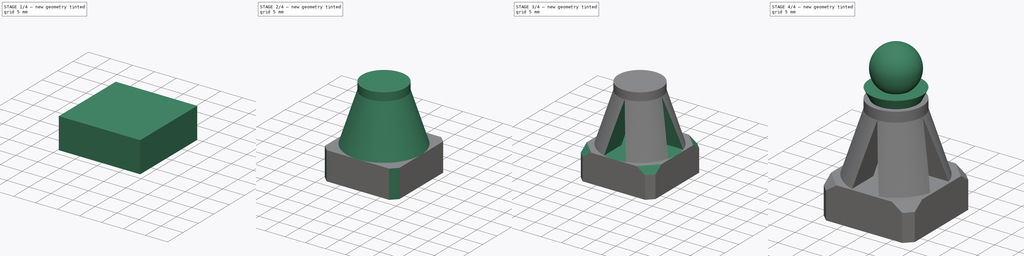
[diagram: build sequence overview — one tinted view per stage of 4, left to right]
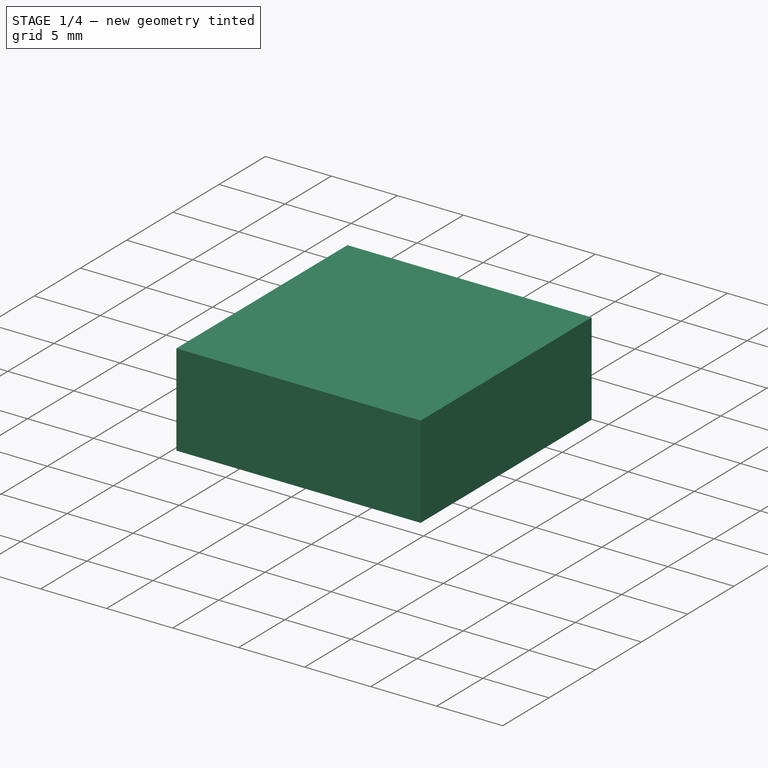
[diagram: stage 1 of 4 — iso view after this stage's code; geometry added in this stage tinted green]
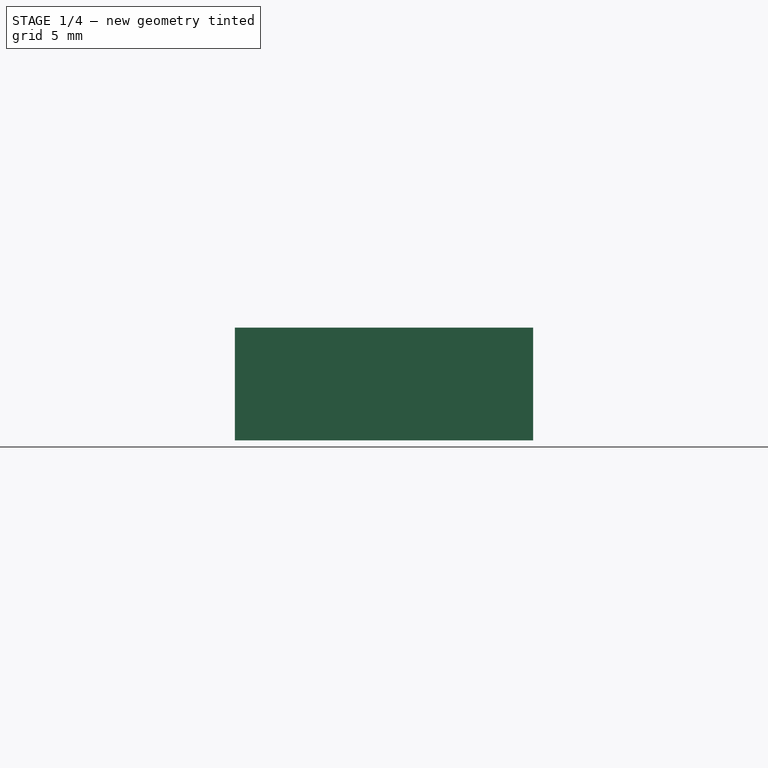
[diagram: stage 1 of 4 — front view after this stage's code; geometry added in this stage tinted green]
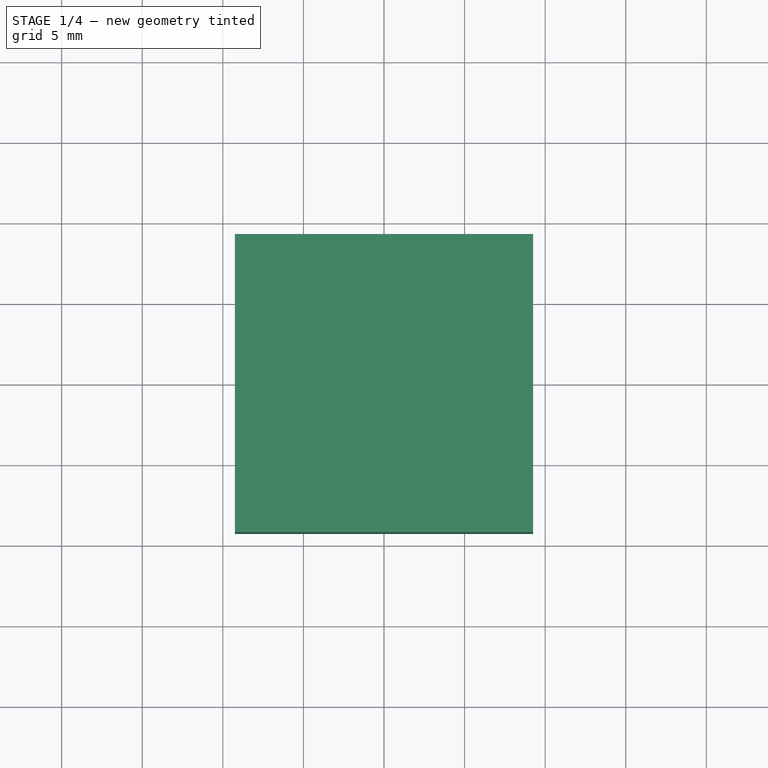
[diagram: stage 1 of 4 — top view after this stage's code; geometry added in this stage tinted green]
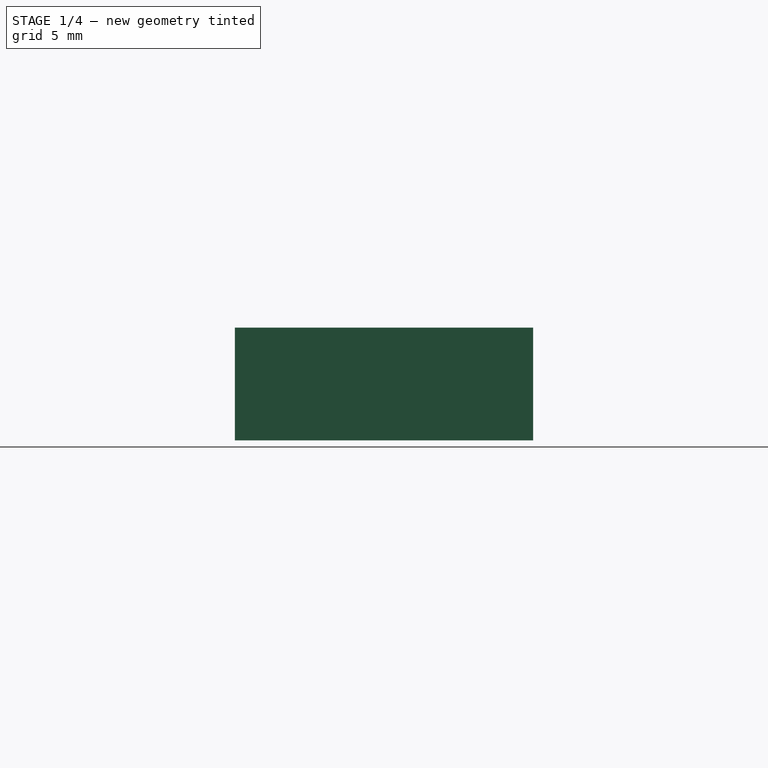
[diagram: stage 1 of 4 — right view after this stage's code; geometry added in this stage tinted green]
FCSTD DOCUMENT  (FreeCAD 0.21R33771 (Git))
Label: NewPawn
License: All rights reserved
LicenseURL: http://en.wikipedia.org/wiki/All_rights_reserved
objects: Sketcher::SketchObject×8, PartDesign::Pad×3, PartDesign::AdditiveLoft×2, PartDesign::Chamfer×2, Spreadsheet::Sheet×1, PartDesign::Pocket×1, PartDesign::PolarPattern×1, PartDesign::AdditiveEllipsoid×1, PartDesign::Body×1, App::Part×1
note: 28 computed .brp shape members not serialized (recipe doc carries the construction recipe); baked Part::Feature solids carry a one-line shape summary decoded from their .brp

FEATURE [Spreadsheet::Sheet] Spreadsheet  label="s"
  cells = A1='base_hole; B1(base_hole)=16; A2='base_clearance; B2(base_clearance)=0.3; A3='base_depth; B3(base_depth)=4; A4='base_spacer_depth; B4(base_spacer_depth)=3; A5='base_chamfer; B5(base_chamfer)=1.5; A6='base_total_depth; B6(base_total_depth)==B3 + base_spacer_depth * 2; A8='body_height; B8(body_height)=12; A10='base_wall; B10(base_wall)=2.5; A12='loft_top; B12(loft_top)=2; A14='platform_diameter; B14(platform_diameter)=10.8; A15='platform_offset; B15(platform_offset)=2.09; A16='platform_depth; B16(platform_depth)=2; A17='tower_space; B17(tower_space)==B14 / 2; C17='Calculated; A19='total_stock_height; B19(total_stock_height)==B3 + B4 + B8 + B16 * 2; C19='Calculated; A20='piece_total_height; B20(piece_total_height)=32; A21='crown_pocket; B21(crown_pocket)=5
FEATURE [Sketcher::SketchObject] Sketch
  FullyConstrained = true
  MapMode = 5
  expr: Constraints[10] = <<s>>.base_hole + <<s>>.base_wall
  expr: Constraints[11] = <<s>>.base_hole + <<s>>.base_wall
  expr: Constraints[1] = <<s>>.base_hole + <<s>>.base_clearance
  sketch-geometry (5):
    g0: Circle CenterX=0 CenterY=0 CenterZ=0 NormalX=0 NormalY=0 NormalZ=1 AngleXU=0 Radius=8.15
    g1: LineSegment StartX=-9.25 StartY=9.25 StartZ=0 EndX=9.25 EndY=9.25 EndZ=0
    g2: LineSegment StartX=9.25 StartY=9.25 StartZ=0 EndX=9.25 EndY=-9.25 EndZ=0
    g3: LineSegment StartX=9.25 StartY=-9.25 StartZ=0 EndX=-9.25 EndY=-9.25 EndZ=0
    g4: LineSegment StartX=-9.25 StartY=-9.25 StartZ=0 EndX=-9.25 EndY=9.25 EndZ=0
  constraints (13):
    c: Coincident(g0,g-1)
    c: Diameter(g0) = 16.3
    c: Coincident(g1,g2)
    c: Coincident(g2,g3)
    c: Coincident(g3,g4)
    c: Coincident(g4,g1)
    c: Horizontal(g1)
    c: Horizontal(g3)
    c: Vertical(g2)
    c: Vertical(g4)
    c: DistanceY(g4,g4) = 18.5
    c: DistanceX(g1,g1) = 18.5
    c: Symmetric(g1,g3,g0)
FEATURE [PartDesign::Pad] Pad  label="BasePad"
  Direction = (0,0,1)
  Length = 4
  Length2 = 10
  Profile = -> Sketch
  ReferenceAxis = -> Sketch [N_Axis]
  Type = 0
  expr: Length = <<s>>.base_depth
FEATURE [Sketcher::SketchObject] Sketch001
  FullyConstrained = true
  MapMode = 5
  Placement = pos=(0,0,4) rot=(0,0,1;0rad)
  Support = -> [Pad]
  expr: Constraints[8] = <<s>>.base_hole + <<s>>.base_wall
  expr: Constraints[9] = <<s>>.base_hole + <<s>>.base_wall
  sketch-geometry (4):
    g0: LineSegment StartX=-9.25 StartY=9.25 StartZ=0 EndX=9.25 EndY=9.25 EndZ=0
    g1: LineSegment StartX=9.25 StartY=9.25 StartZ=0 EndX=9.25 EndY=-9.25 EndZ=0
    g2: LineSegment StartX=9.25 StartY=-9.25 StartZ=0 EndX=-9.25 EndY=-9.25 EndZ=0
    g3: LineSegment StartX=-9.25 StartY=-9.25 StartZ=0 EndX=-9.25 EndY=9.25 EndZ=0
  constraints (11):
    c: Coincident(g0,g1)
    c: Coincident(g1,g2)
    c: Coincident(g2,g3)
    c: Coincident(g3,g0)
    c: Horizontal(g0)
    c: Horizontal(g2)
    c: Vertical(g1)
    c: Vertical(g3)
    c: DistanceY(g3,g3) = 18.5
    c: DistanceX(g0,g0) = 18.5
    c: Symmetric(g0,g2,g-1)
FEATURE [PartDesign::Pad] Pad001  label="BaseTopper"
  BaseFeature = -> Pad
  Direction = (0,0,1)
  Length = 3
  Length2 = 10
  Profile = -> Sketch001
  ReferenceAxis = -> Sketch001 [N_Axis]
  Type = 0
  expr: Length = <<s>>.base_spacer_depth
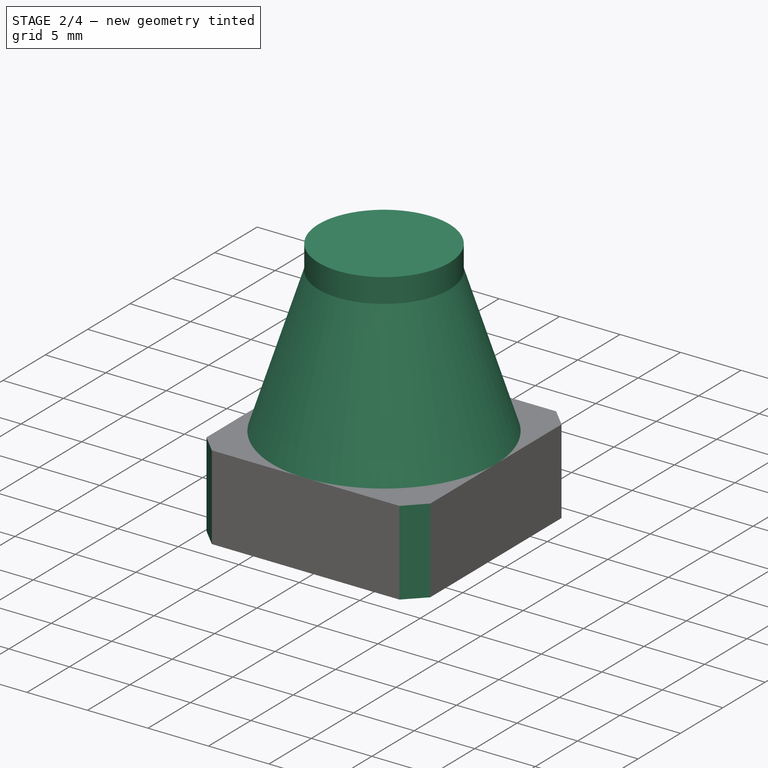
[diagram: stage 2 of 4 — iso view after this stage's code; geometry added in this stage tinted green]
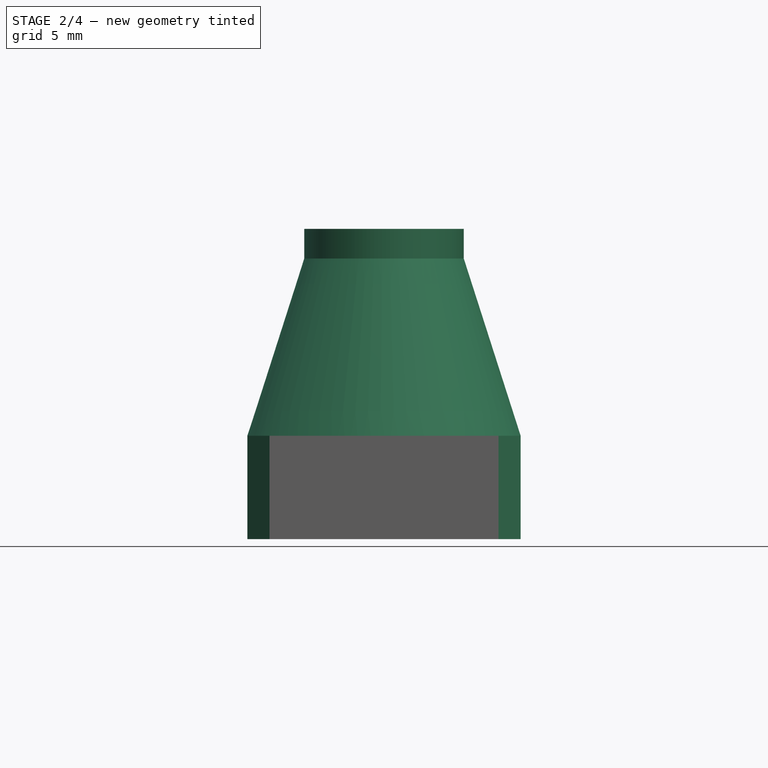
[diagram: stage 2 of 4 — front view after this stage's code; geometry added in this stage tinted green]
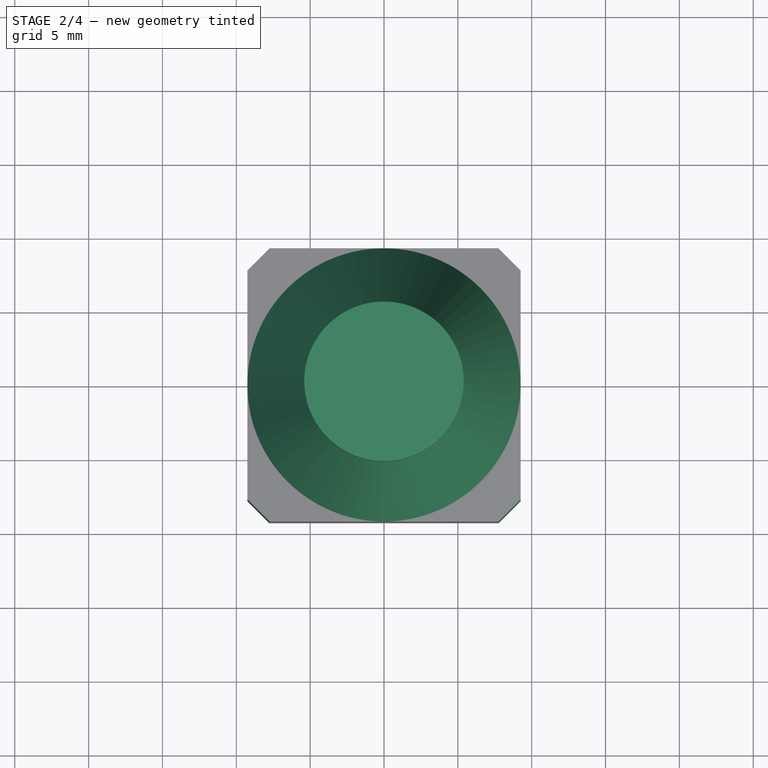
[diagram: stage 2 of 4 — top view after this stage's code; geometry added in this stage tinted green]
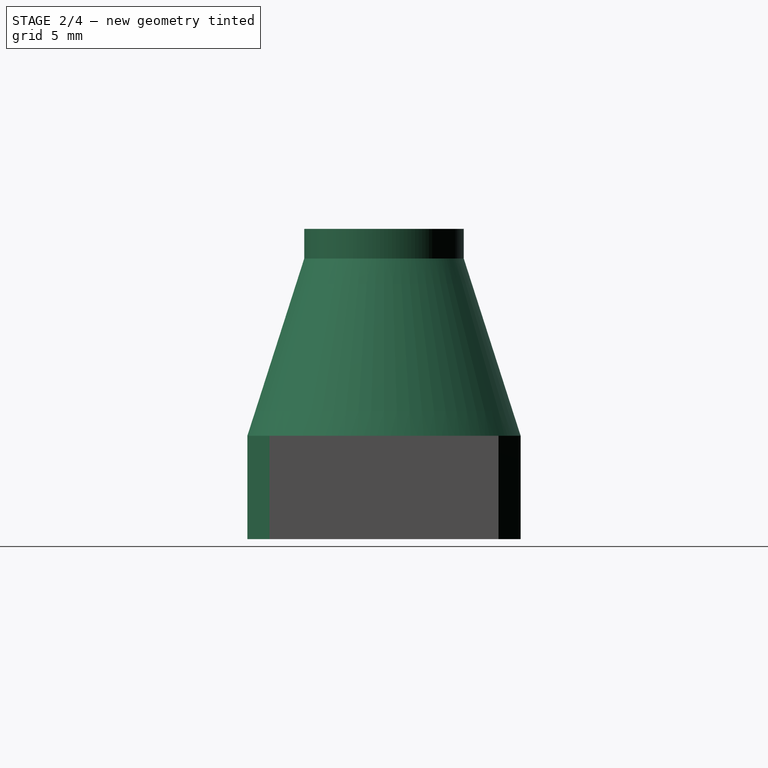
[diagram: stage 2 of 4 — right view after this stage's code; geometry added in this stage tinted green]
FEATURE [Sketcher::SketchObject] Sketch002
  FullyConstrained = true
  MapMode = 5
  Placement = pos=(0,0,7) rot=(0,0,1;0rad)
  Support = -> [Pad001]
  expr: Constraints[1] = <<s>>.base_hole + <<s>>.base_wall
  sketch-geometry (1):
    g0: Circle CenterX=0 CenterY=0 CenterZ=0 NormalX=0 NormalY=0 NormalZ=1 AngleXU=0 Radius=9.25
  constraints (2):
    c: Coincident(g0,g-1)
    c: Diameter(g0) = 18.5
FEATURE [Sketcher::SketchObject] Sketch003
  AttachmentOffset = pos=(0,0,12) rot=(0,0,1;0rad)
  FullyConstrained = true
  MapMode = 5
  Placement = pos=(0,0,19) rot=(0,0,1;0rad)
  Support = -> [Pad001]
  expr: .AttachmentOffset.Base.z = Spreadsheet.body_height
  expr: Constraints[1] = <<s>>.platform_diameter
  sketch-geometry (1):
    g0: Circle CenterX=0 CenterY=0 CenterZ=0 NormalX=0 NormalY=0 NormalZ=1 AngleXU=0 Radius=5.4
  constraints (2):
    c: Coincident(g0,g-1)
    c: Diameter(g0) = 10.8
FEATURE [PartDesign::AdditiveLoft] AdditiveLoft  label="TowerRise"
  BaseFeature = -> Pad001
  Closed = false
  Profile = -> Sketch002
  Ruled = false
  Sections = -> [Sketch003]
FEATURE [Sketcher::SketchObject] Sketch005
  FullyConstrained = true
  MapMode = 5
  Placement = pos=(0,0,19) rot=(0,0,1;0rad)
  Support = -> [AdditiveLoft]
  expr: Constraints[1] = <<s>>.platform_diameter
  sketch-geometry (1):
    g0: Circle CenterX=0 CenterY=0 CenterZ=0 NormalX=0 NormalY=0 NormalZ=1 AngleXU=0 Radius=5.4
  constraints (2):
    c: Coincident(g0,g-1)
    c: Diameter(g0) = 10.8
FEATURE [PartDesign::Pad] Pad002  label="PlatformPad"
  BaseFeature = -> AdditiveLoft
  Direction = (0,0,1)
  Length = 2
  Length2 = 10
  Profile = -> Sketch005
  ReferenceAxis = -> Sketch005 [N_Axis]
  Type = 0
  expr: Length = <<s>>.platform_depth
FEATURE [PartDesign::Chamfer] Chamfer  label="BaseEdgeChamfer"
  Angle = 45
  Base = -> Pad002 [Edge18,Edge5,Edge21,Edge8,Edge2,Edge14,Edge13,Edge1]
  BaseFeature = -> Pad002
  ChamferType = 0
  FlipDirection = false
  Size = 1.5
  Size2 = 1
  SupportTransform = false
  UseAllEdges = false
  expr: Size = <<s>>.base_chamfer
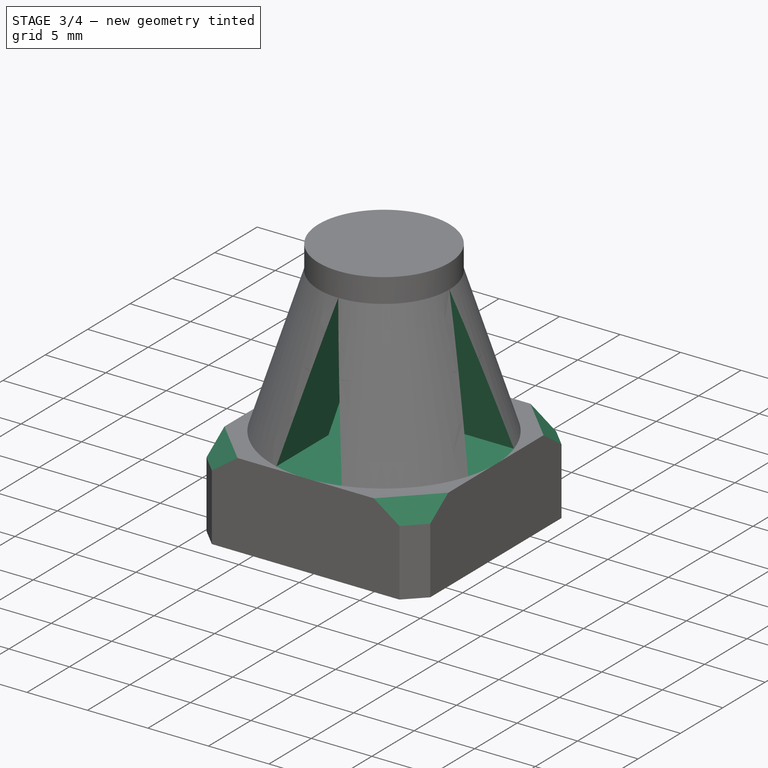
[diagram: stage 3 of 4 — iso view after this stage's code; geometry added in this stage tinted green]
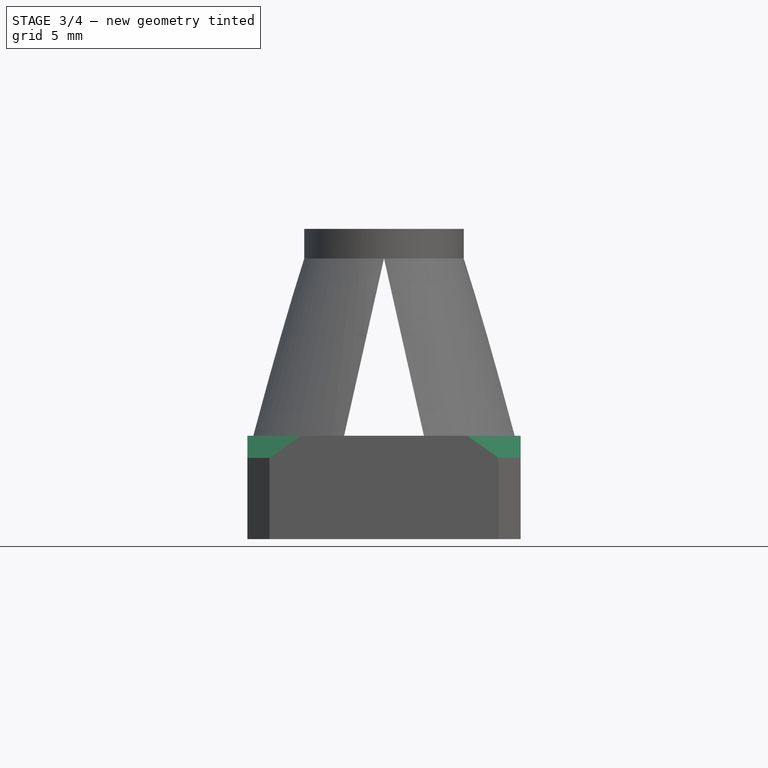
[diagram: stage 3 of 4 — front view after this stage's code; geometry added in this stage tinted green]
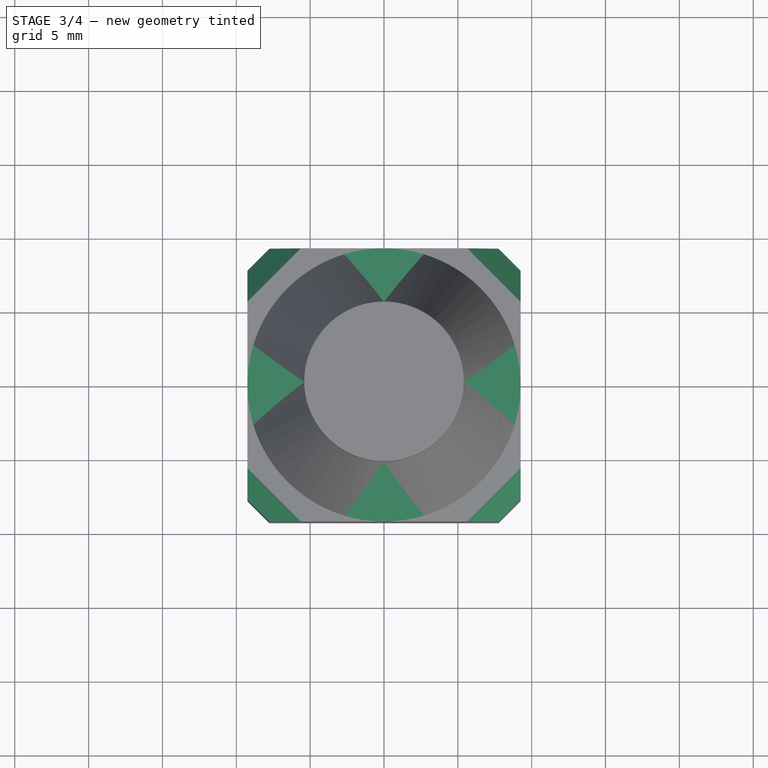
[diagram: stage 3 of 4 — top view after this stage's code; geometry added in this stage tinted green]
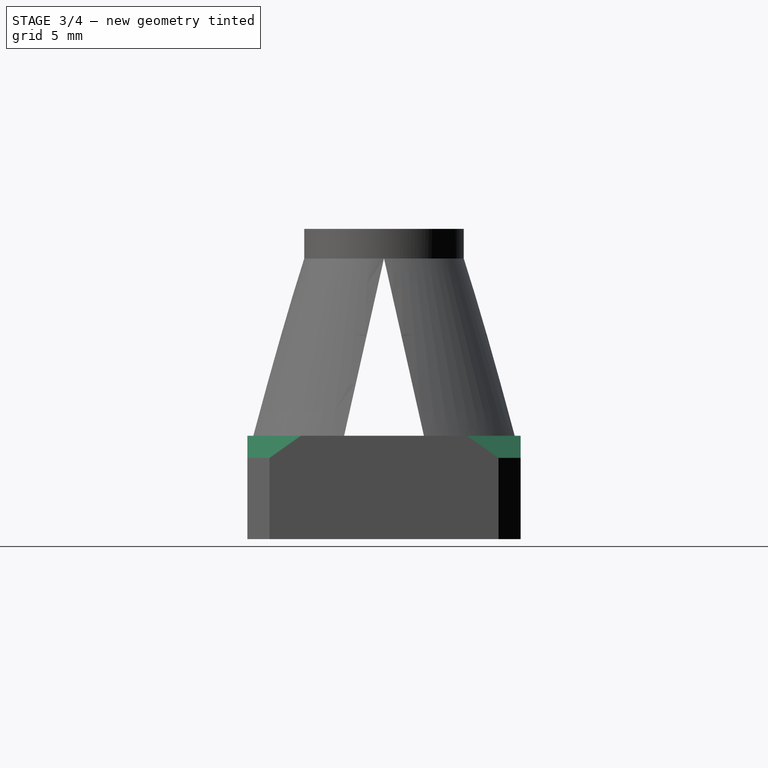
[diagram: stage 3 of 4 — right view after this stage's code; geometry added in this stage tinted green]
FEATURE [PartDesign::Chamfer] Chamfer001  label="BaseTopEdgeChamfer"
  Angle = 45
  Base = -> Chamfer [Edge47,Edge45,Edge33,Edge35]
  BaseFeature = -> Chamfer
  ChamferType = 0
  FlipDirection = false
  Size = 1.5
  Size2 = 1
  SupportTransform = false
  UseAllEdges = false
  expr: Size = <<s>>.base_chamfer
FEATURE [Sketcher::SketchObject] Sketch006
  FullyConstrained = true
  MapMode = 5
  Placement = pos=(9.25,0,0) rot=(0.57735,0.57735,0.57735;2.0944rad)
  Support = -> [Chamfer001]
  expr: Constraints[5] = <<s>>.tower_space
  expr: Constraints[6] = <<s>>.tower_space / 2
  expr: Constraints[7] = <<s>>.base_depth + <<s>>.base_spacer_depth
  expr: Constraints[8] = <<s>>.body_height
  sketch-geometry (3):
    g0: LineSegment StartX=0 StartY=19 StartZ=0 EndX=-2.7 EndY=7 EndZ=0
    g1: LineSegment StartX=-2.7 StartY=7 StartZ=0 EndX=2.7 EndY=7 EndZ=0
    g2: LineSegment StartX=2.7 StartY=7 StartZ=0 EndX=0 EndY=19 EndZ=0
  constraints (9):
    c: PointOnObject(g0,g-2)
    c: Coincident(g0,g1)
    c: Horizontal(g1)
    c: Coincident(g1,g2)
    c: Coincident(g2,g0)
    c: DistanceX(g1,g1) = 5.4
    c: DistanceX(g0,g-1) = 2.7
    c: DistanceY(g-1,g0) = 7
    c: DistanceY(g0,g0) = 12
FEATURE [PartDesign::Pocket] Pocket  label="SideTowerPocket"
  BaseFeature = -> Chamfer001
  Direction = (-1,0,0)
  Length = 5
  Length2 = 5
  Profile = -> Sketch006
  ReferenceAxis = -> Sketch006 [N_Axis]
  Type = 1
FEATURE [PartDesign::PolarPattern] PolarPattern  label="SideTowerPocketPolarPattern"
  Angle = 360
  Axis = -> Z_Axis001
  BaseFeature = -> Pocket
  Occurrences = 4
  Originals = -> [Pocket]
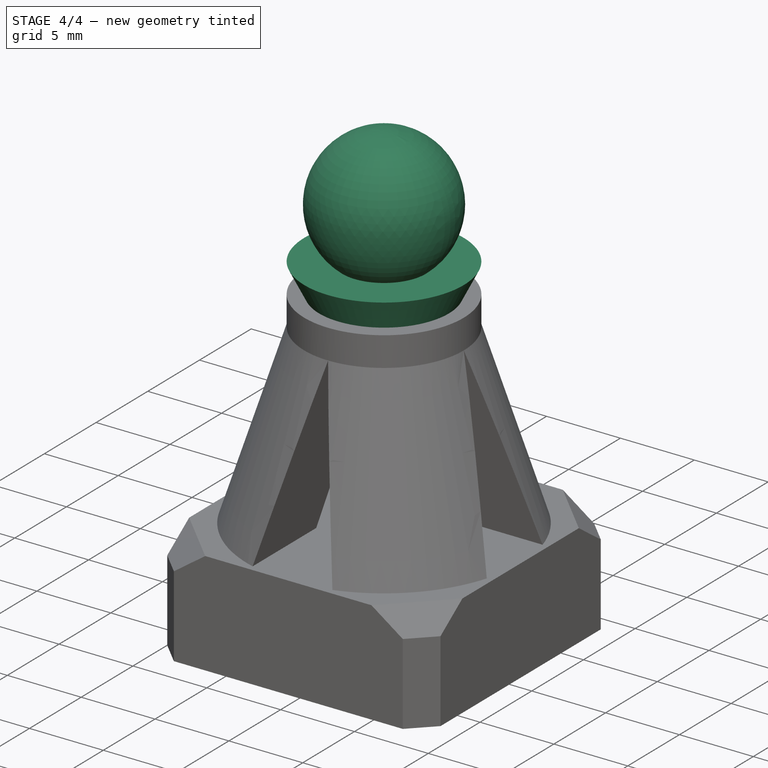
[diagram: stage 4 of 4 — iso view after this stage's code; geometry added in this stage tinted green]
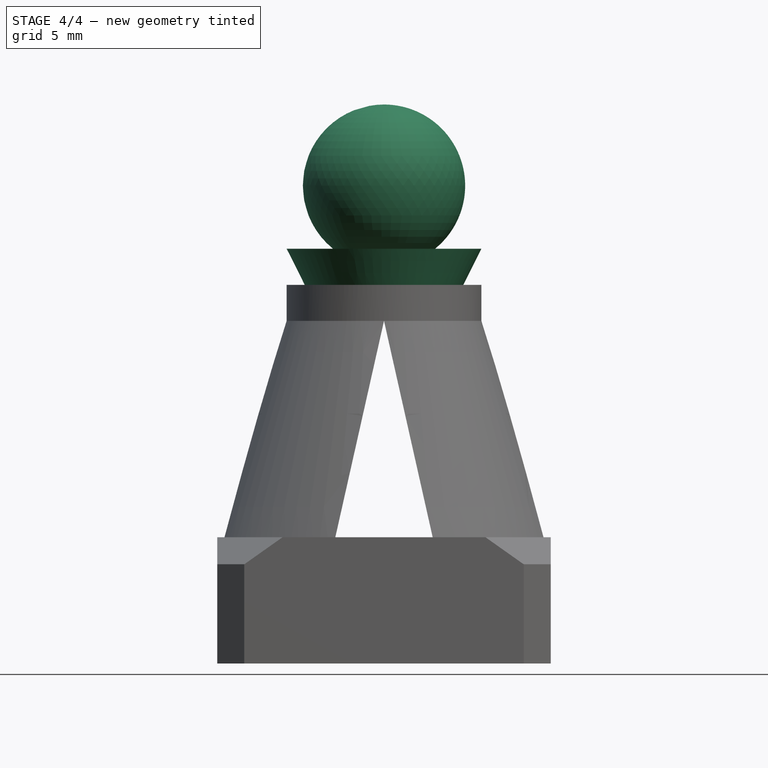
[diagram: stage 4 of 4 — front view after this stage's code; geometry added in this stage tinted green]
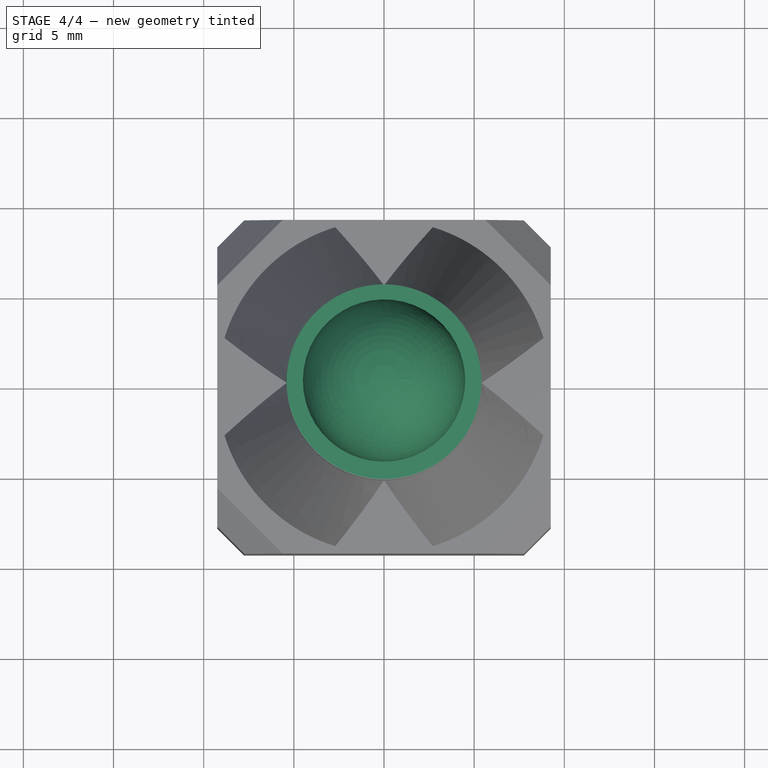
[diagram: stage 4 of 4 — top view after this stage's code; geometry added in this stage tinted green]
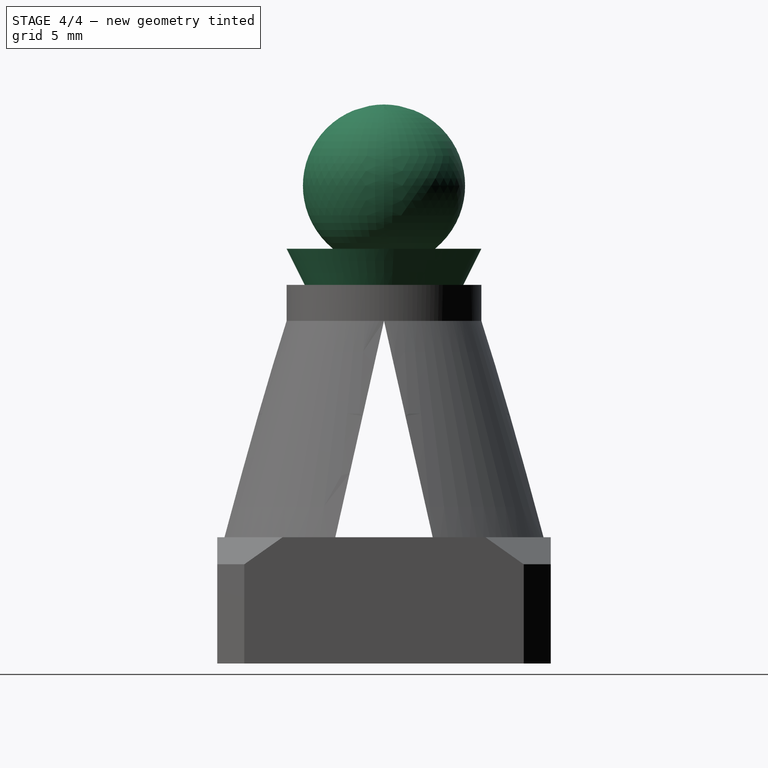
[diagram: stage 4 of 4 — right view after this stage's code; geometry added in this stage tinted green]
FEATURE [Sketcher::SketchObject] Sketch007
  FullyConstrained = true
  MapMode = 5
  Placement = pos=(0,0,21) rot=(0,0,1;0rad)
  Support = -> [PolarPattern]
  expr: Constraints[1] = <<s>>.platform_diameter - 2
  sketch-geometry (1):
    g0: Circle CenterX=0 CenterY=0 CenterZ=0 NormalX=0 NormalY=0 NormalZ=1 AngleXU=0 Radius=4.4
  constraints (2):
    c: Coincident(g0,g-1)
    c: Diameter(g0) = 8.8
FEATURE [Sketcher::SketchObject] Sketch008
  FullyConstrained = true
  MapMode = 5
  Placement = pos=(0,0,23) rot=(0,0,1;0rad)
  expr: .Placement.Base.z = <<s>>.base_depth + <<s>>.base_spacer_depth + <<s>>.body_height + <<s>>.platform_depth * 2
  expr: Constraints[1] = <<s>>.platform_diameter
  sketch-geometry (1):
    g0: Circle CenterX=0 CenterY=0 CenterZ=0 NormalX=0 NormalY=0 NormalZ=1 AngleXU=0 Radius=5.4
  constraints (2):
    c: Coincident(g0,g-1)
    c: Diameter(g0) = 10.8
FEATURE [PartDesign::AdditiveLoft] AdditiveLoft001  label="PlatformLoft"
  BaseFeature = -> PolarPattern
  Closed = false
  Profile = -> Sketch007
  Ruled = false
  Sections = -> [Sketch008]
FEATURE [PartDesign::AdditiveEllipsoid] Ellipsoid
  Angle1 = -90
  Angle2 = 90
  Angle3 = 360
  AttacherType = Attacher::AttachEngine3D
  AttachmentOffset = pos=(0,0,3.5) rot=(0,0,1;0rad)
  BaseFeature = -> AdditiveLoft001
  MapMode = 5
  Placement = pos=(0,0,26.5) rot=(0,0,1;0rad)
  Radius1 = 4.5
  Radius2 = 4.5
  Radius3 = 0
  Support = -> [AdditiveLoft001]
FEATURE [PartDesign::Body] Body  label="PieceBody"
  Group = -> [Sketch,Pad,Sketch001,Pad001,Sketch002,Sketch003,AdditiveLoft,Sketch005,Pad002,Chamfer,Chamfer001,Sketch006,Pocket,PolarPattern,Sketch007,Sketch008,AdditiveLoft001,Ellipsoid]
  Origin = -> Origin001
  Tip = -> Ellipsoid
FEATURE [App::Part] Part  label="PiecePart"
  Group = -> [Body]
  Origin = -> Origin
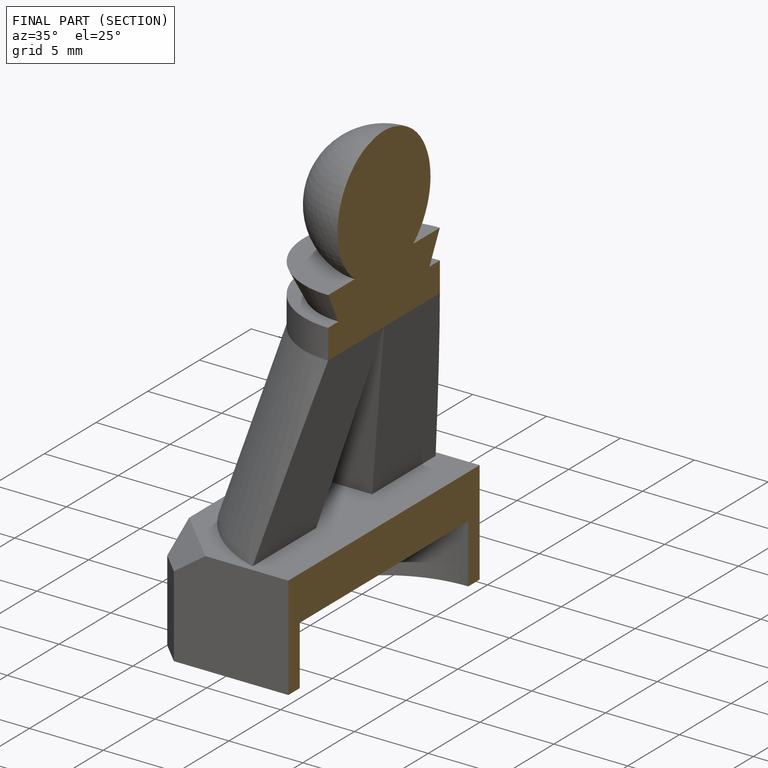
[diagram: finished part — half-section view (interior)]
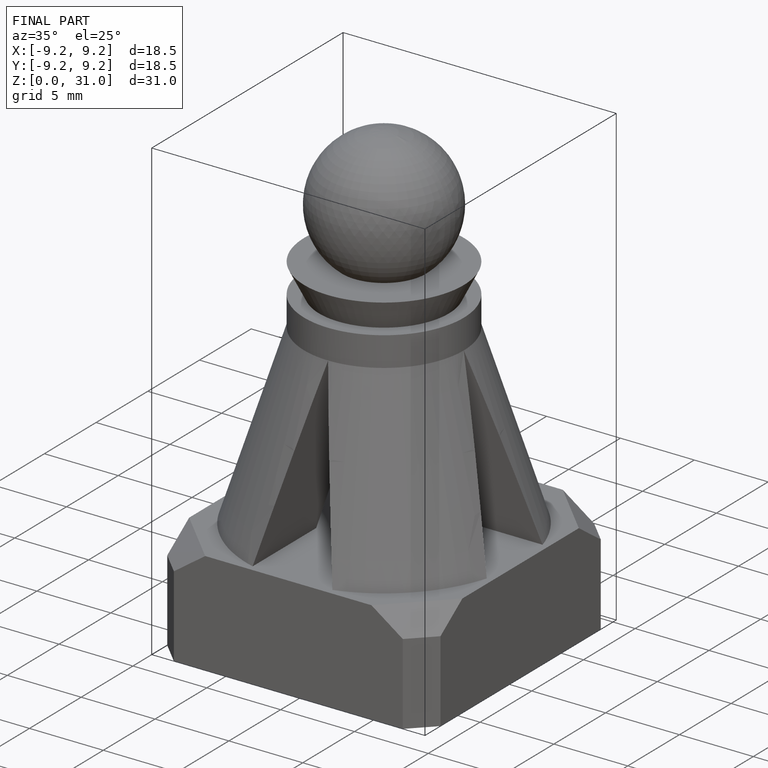
[diagram: finished part — iso view with bounding-box wireframe]
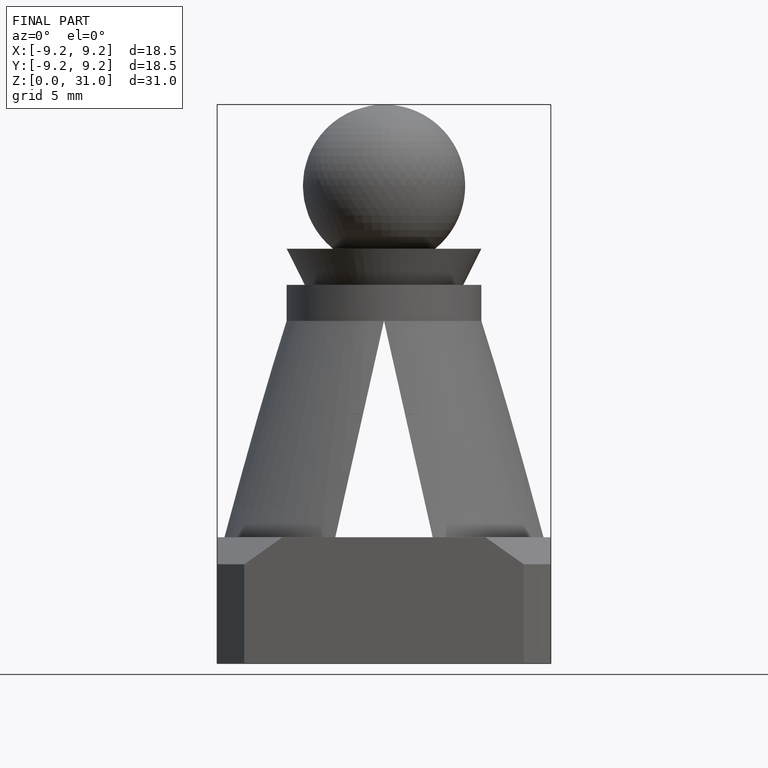
[diagram: finished part — front view with bounding-box wireframe]
